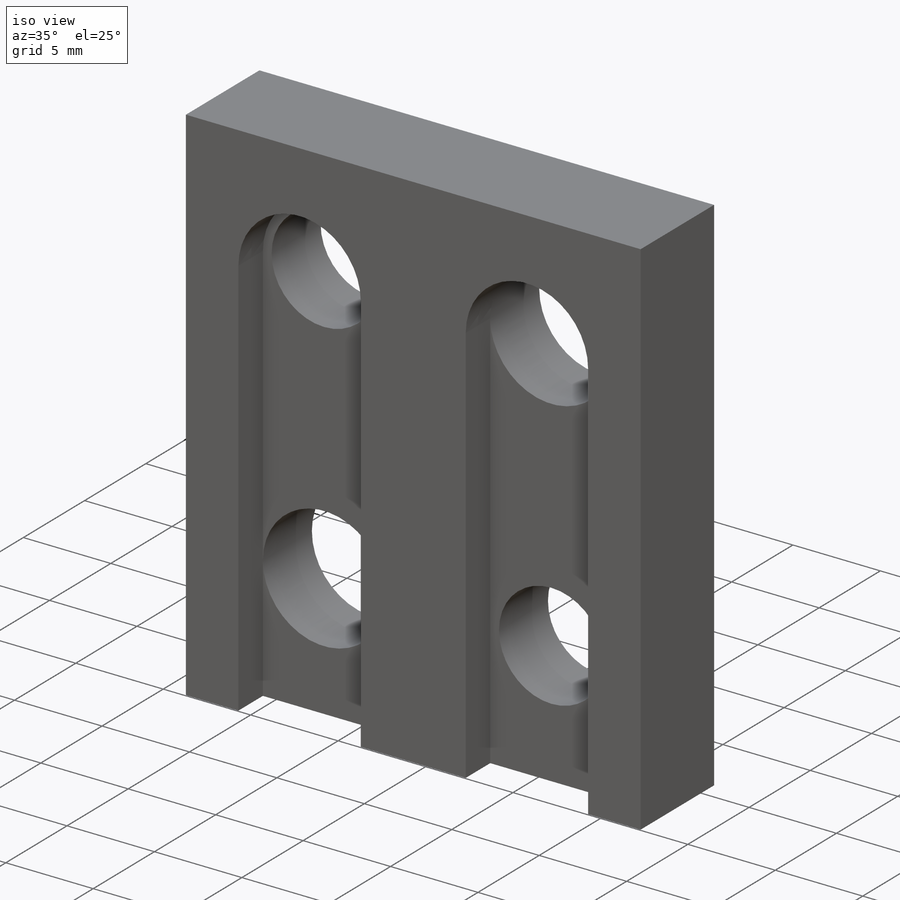
[diagram: iso view]
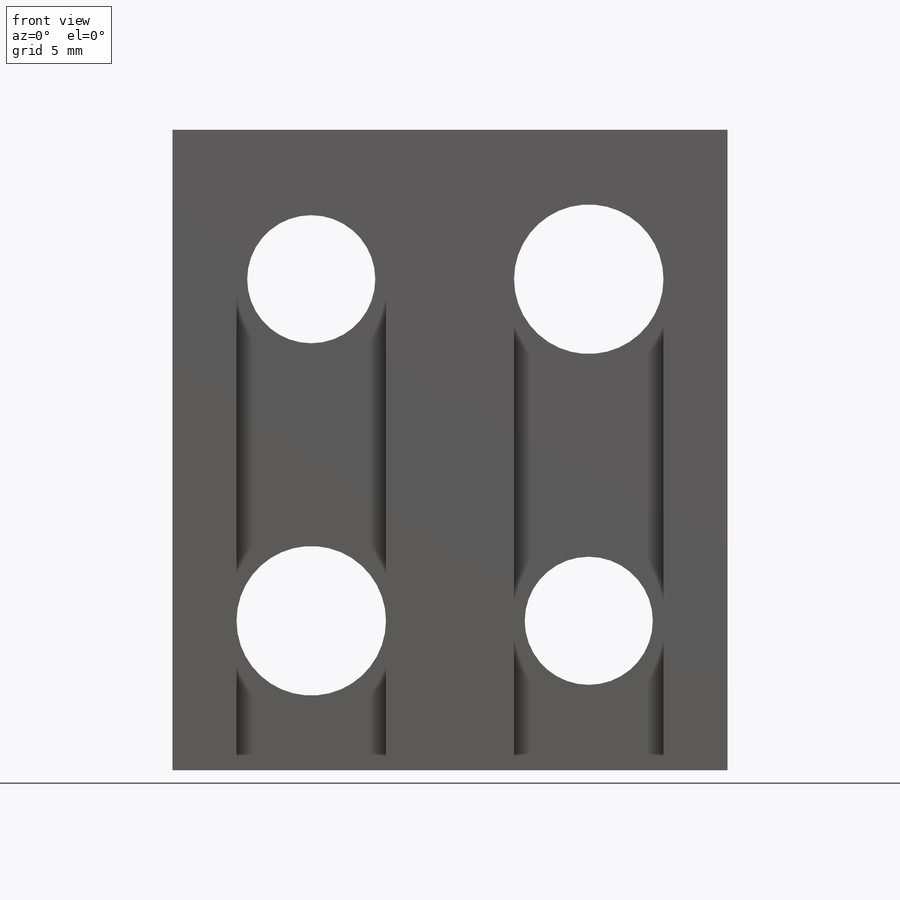
[diagram: front view]
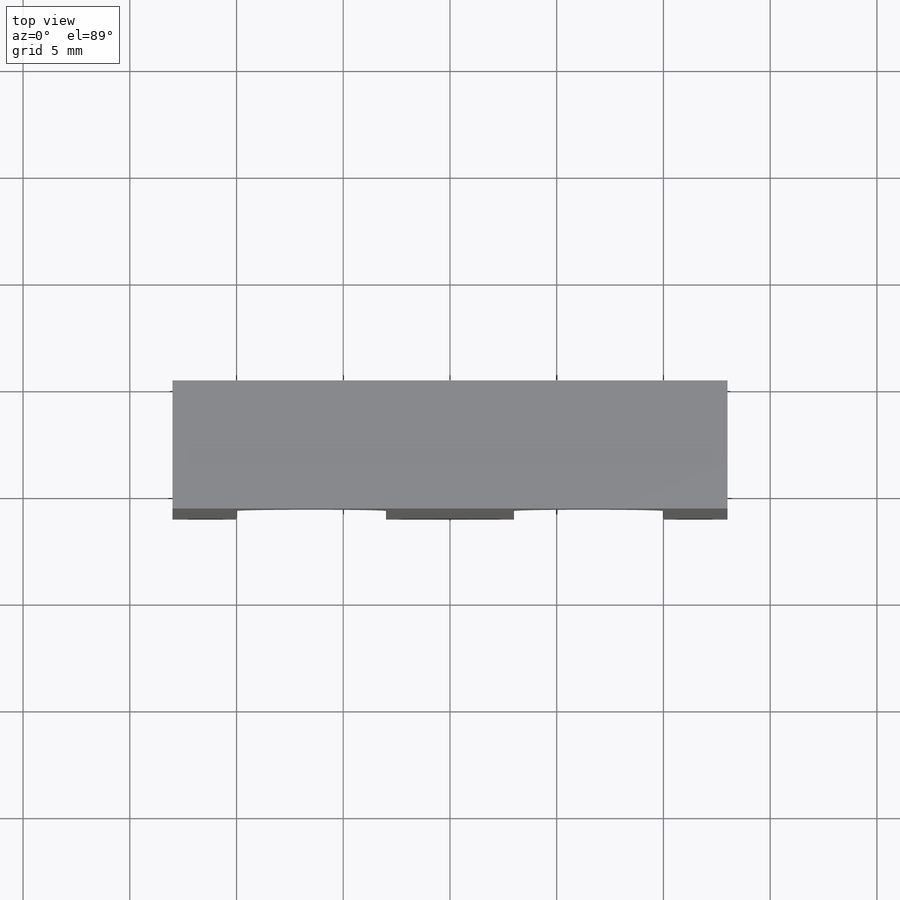
[diagram: top view]
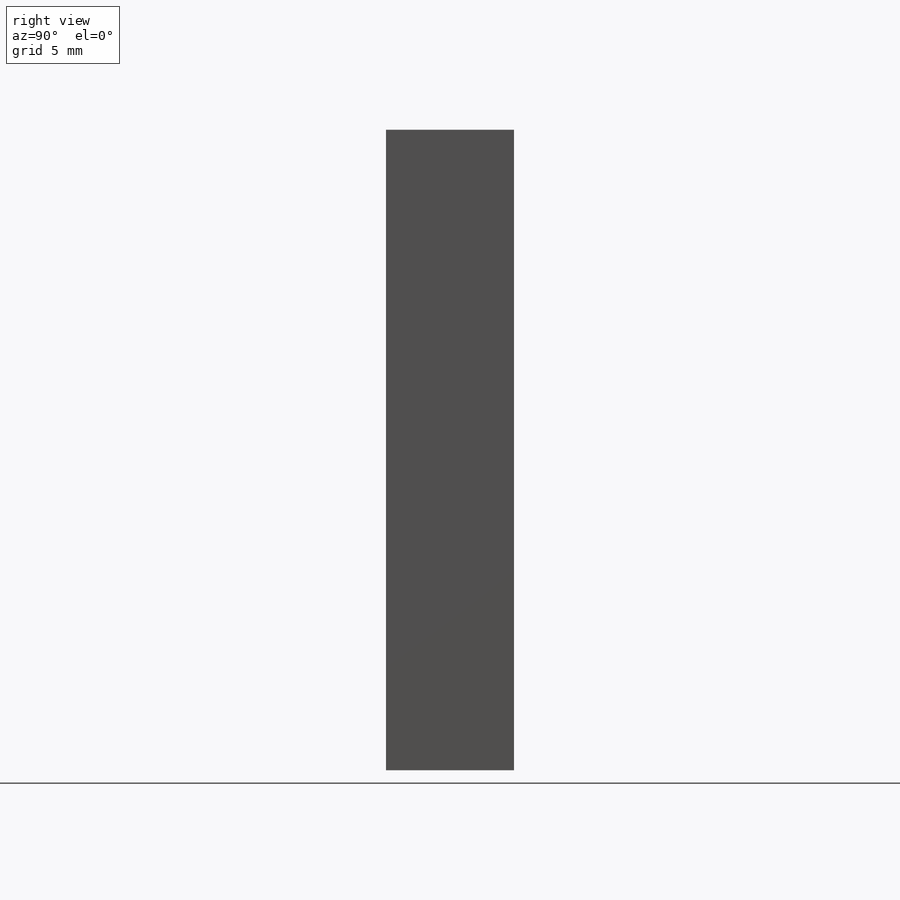
[diagram: right view]
SOLIDWORKS PART (.sldprt)
format: sldprt  version: not decoded by parser v0  size: 181,248 bytes
history: native  units: mm
features: sketch x4, extrude x4, plane x3, material x1, cut_extrude x1 + 4 further entries (+8 scaffold rows collapsed)
feature tree (25):
  scaffold x8  (default folders/planes/origin — collapsed)
  material  "Ст 3 ГОСТ 380-2005"
  plane  "Спереди"
  plane  "Сверху"
  plane  "Слева"
  "Начало координат"
  "PTricksFreeParameters"
  "PTricksEqu"
  "PTricksFreeParameters"
  sketch  "Эскиз1"  dims[D1=30.0mm D2=26.0mm]
  extrude  "База"  Depth=4mm
  sketch  "Эскиз2"  dims[D3=6.0mm D4=7.0mm D1=6.5mm D2=7.0mm]
  cut_extrude  "Штифты"  [1 undecoded]
  sketch  "Эскиз3"  dims[D1=0.0mm]
  extrude  "Вытянуть3"  Depth=2mm
  sketch  "Эскиз4"  dims[c1.D1=1.0mm c1.D2=1.0mm c1.D3=1.0mm c2.D2=1.0mm]
  extrude  "1мм[2]"  [1 undecoded]
  extrude  "1мм[3]"  [1 undecoded]
decode coverage: 6 of 9 modeling features carry decoded parameters; 4 rows unclassified (native names shown)
note: 3 parameter values undecoded
summary: no parameter record found for 3 features
note: suppression state not decoded; provenance and decode notes live in map.json
